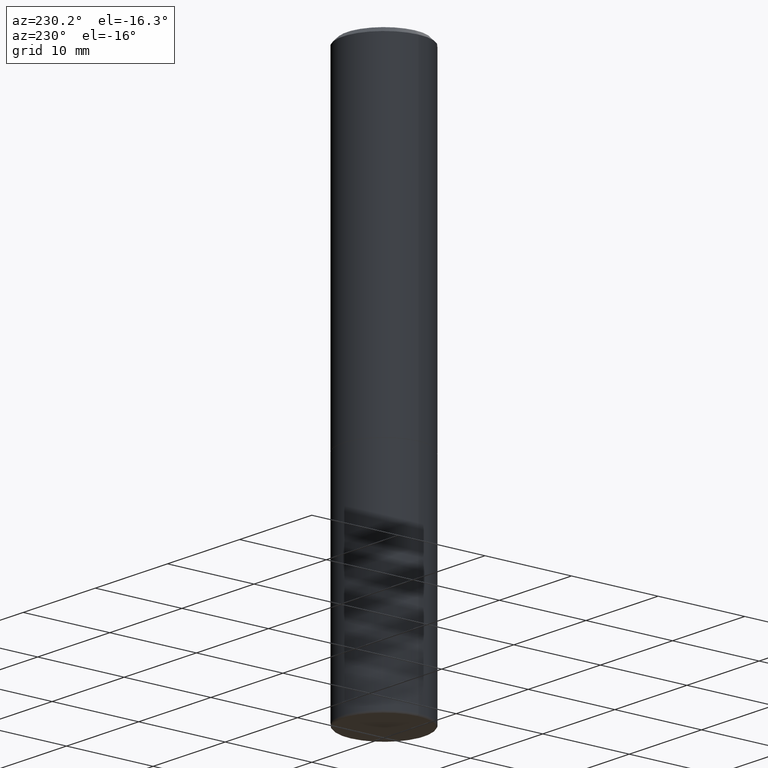
[diagram: clean part render]
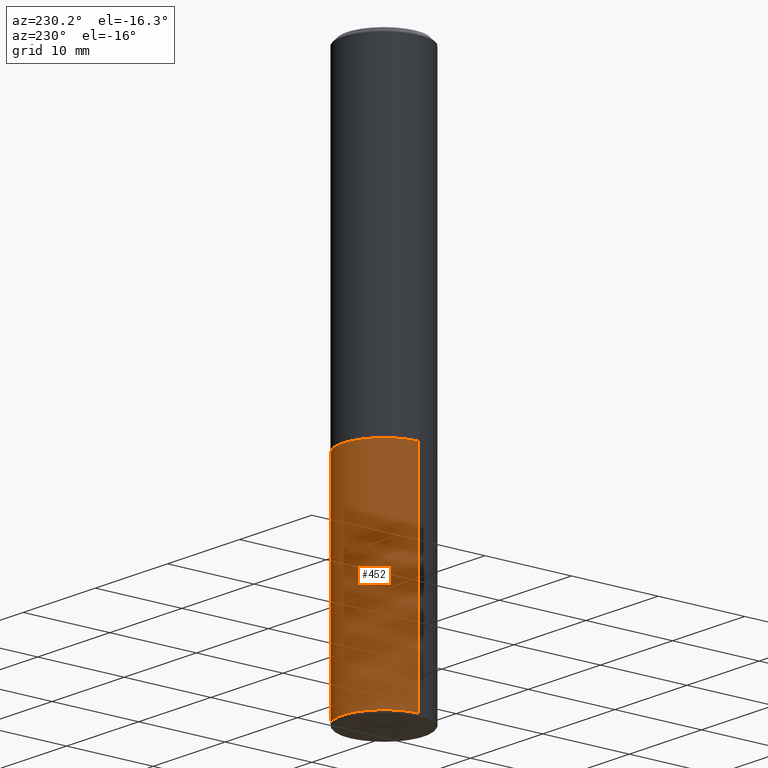
[diagram: same view with one face highlighted and labeled with its STEP entity id]
A machine part, auxiliary view. The second image highlights one B-rep face of the part: STEP entity #452.
In plain terms, the highlighted cylindrical surface (partial cylindrical patch) has radius 4.7625 mm, axis along (-0, 0, 1).
Its self-contained STEP definition (entity closure, byte-faithful):
#19 = EDGE_CURVE ( 'NONE', #432, #298, #376, .T. ) ;
#32 = DIRECTION ( 'NONE',  ( -2.445468806185136597E-29, 3.491481338843145583E-15, 1.000000000000000000 ) ) ;
#39 = ORIENTED_EDGE ( 'NONE', *, *, #271, .F. ) ;
#46 = VERTEX_POINT ( 'NONE', #161 ) ;
#50 = CYLINDRICAL_SURFACE ( 'NONE', #261, 0.1874999999999996392 ) ;
#66 = FACE_OUTER_BOUND ( 'NONE', #245, .T. ) ;
#76 = DIRECTION ( 'NONE',  ( 1.000000000000000000, -6.982962677686267499E-15, 4.876176775795935232E-29 ) ) ;
#83 = CARTESIAN_POINT ( 'NONE',  ( 0.1874999999999996392, -1.309305502066172642E-15, 9.142831454617361395E-30 ) ) ;
#88 = CARTESIAN_POINT ( 'NONE',  ( -0.1874999999999996392, 1.332267629550185285E-15, -9.223003294227931175E-30 ) ) ;
#92 = VERTEX_POINT ( 'NONE', #155 ) ;
#93 = DIRECTION ( 'NONE',  ( 1.000000000000000000, -6.982962677686264344E-15, 0.000000000000000000 ) ) ;
#100 = CARTESIAN_POINT ( 'NONE',  ( 0.1874999999999995837, -1.000309536523471494E-14, -2.490000380769358479 ) ) ;
#110 = ORIENTED_EDGE ( 'NONE', *, *, #244, .F. ) ;
#114 = CARTESIAN_POINT ( 'NONE',  ( -0.1874999999999995837, -5.633238306166445543E-15, -2.490000380769358479 ) ) ;
#122 = CARTESIAN_POINT ( 'NONE',  ( 3.668203209277704895E-29, -5.237222008264718177E-15, -1.500000000000000222 ) ) ;
#126 = LINE ( 'NONE', #88, #440 ) ;
#148 = ORIENTED_EDGE ( 'NONE', *, *, #19, .T. ) ;
#154 = CARTESIAN_POINT ( 'NONE',  ( 6.089218258560578567E-29, -8.693789863168541507E-15, -2.490000380769358479 ) ) ;
#155 = CARTESIAN_POINT ( 'NONE',  ( -0.1874999999999996947, -5.633238306166445543E-15, -1.500000000000000222 ) ) ;
#161 = CARTESIAN_POINT ( 'NONE',  ( 0.1874999999999996947, -6.546527510330890818E-15, -1.500000000000000222 ) ) ;
#190 = CIRCLE ( 'NONE', #327, 0.1874999999999996947 ) ;
#203 = ORIENTED_EDGE ( 'NONE', *, *, #207, .T. ) ;
#206 = CARTESIAN_POINT ( 'NONE',  ( 0.000000000000000000, 0.000000000000000000, 0.000000000000000000 ) ) ;
#207 = EDGE_CURVE ( 'NONE', #298, #92, #126, .T. ) ;
#239 = DIRECTION ( 'NONE',  ( -2.445468806185136597E-29, 3.491481338843145583E-15, 1.000000000000000000 ) ) ;
#244 = EDGE_CURVE ( 'NONE', #432, #46, #456, .T. ) ;
#245 = EDGE_LOOP ( 'NONE', ( #148, #203, #39, #110 ) ) ;
#261 = AXIS2_PLACEMENT_3D ( 'NONE', #206, #262, #76 ) ;
#262 = DIRECTION ( 'NONE',  ( -2.445468806185136597E-29, 3.491481338843145583E-15, 1.000000000000000000 ) ) ;
#271 = EDGE_CURVE ( 'NONE', #46, #92, #190, .T. ) ;
#298 = VERTEX_POINT ( 'NONE', #114 ) ;
#317 = DIRECTION ( 'NONE',  ( -2.445468806185136877E-29, 3.491481338843145188E-15, 1.000000000000000000 ) ) ;
#327 = AXIS2_PLACEMENT_3D ( 'NONE', #122, #239, #93 ) ;
#330 = DIRECTION ( 'NONE',  ( 1.000000000000000000, -6.982962677686268288E-15, 0.000000000000000000 ) ) ;
#376 = CIRCLE ( 'NONE', #445, 0.1874999999999995837 ) ;
#418 = DIRECTION ( 'NONE',  ( -2.445468806185136877E-29, 3.491481338843145188E-15, 1.000000000000000000 ) ) ;
#432 = VERTEX_POINT ( 'NONE', #100 ) ;
#440 = VECTOR ( 'NONE', #317, 39.37007874015748143 ) ;
#445 = AXIS2_PLACEMENT_3D ( 'NONE', #154, #32, #330 ) ;
#452 = ADVANCED_FACE ( 'NONE', ( #66 ), #50, .T. ) ;
#456 = LINE ( 'NONE', #83, #492 ) ;
#492 = VECTOR ( 'NONE', #418, 39.37007874015748143 ) ;